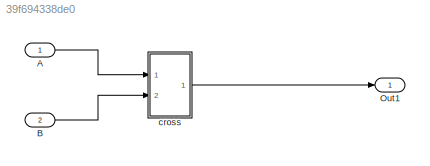
MODEL slx_39f694338de0
KIND model
CONFIG AbsTol = auto
CONFIG EnableMultiTasking = off
CONFIG FixedStep = 0.200000
CONFIG MaxStep = auto
CONFIG MinStep = auto
CONFIG RelTol = 1e-3
CONFIG SampleTimeConstraint = Unconstrained
CONFIG Solver = FixedStepDiscrete
CONFIG SolverName = FixedStepDiscrete
CONFIG StartTime = 0.0
CONFIG StopTime = 10.0
BLOCK [Inport] A
  IconDisplay = Port number
BLOCK [Inport] B
  IconDisplay = Port number
  Port = 2
BLOCK [Outport] Out1
  IconDisplay = Port number
  OutMax = 5
  OutMin = 1
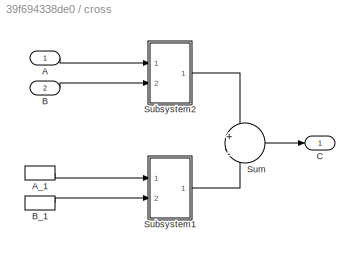
BLOCK [SubSystem] cross
  Ports = [2, 1]
  RequestExecContextInheritance = off
  Variant = off
BLOCK [Inport] cross/A
  IconDisplay = Port number
BLOCK [InportShadow] cross/A_1
  IconDisplay = Port number
BLOCK [Inport] cross/B
  IconDisplay = Port number
  Port = 2
BLOCK [InportShadow] cross/B_1
  IconDisplay = Port number
  Port = 2
BLOCK [Outport] cross/C
  IconDisplay = Port number
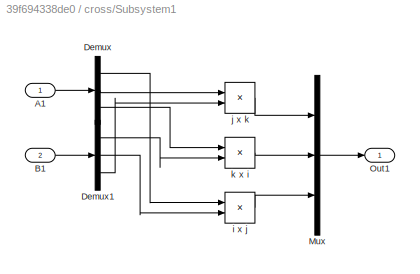
BLOCK [SubSystem] cross/Subsystem1
  Ports = [2, 1]
  RequestExecContextInheritance = off
  Variant = off
BLOCK [Inport] cross/Subsystem1/A1
  IconDisplay = Port number
BLOCK [Inport] cross/Subsystem1/B1
  IconDisplay = Port number
  Port = 2
BLOCK [Demux] cross/Subsystem1/Demux
  DisplayOption = bar
  Outputs = 3
  Ports = [1, 3]
BLOCK [Demux] cross/Subsystem1/Demux1
  DisplayOption = bar
  Outputs = 3
  Ports = [1, 3]
BLOCK [Mux] cross/Subsystem1/Mux
  DisplayOption = bar
  Inputs = 3
  Ports = [3, 1]
BLOCK [Outport] cross/Subsystem1/Out1
  IconDisplay = Port number
BLOCK [Product] cross/Subsystem1/i x j
  Ports = [2, 1]
  RndMeth = Floor
BLOCK [Product] cross/Subsystem1/j x k
  Ports = [2, 1]
  RndMeth = Floor
BLOCK [Product] cross/Subsystem1/k x i
  Ports = [2, 1]
  RndMeth = Floor
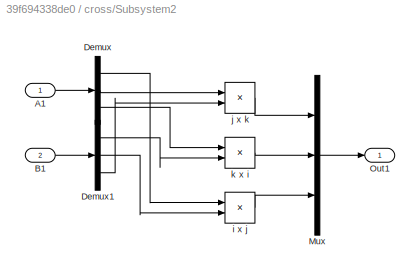
BLOCK [SubSystem] cross/Subsystem2
  Ports = [2, 1]
  RequestExecContextInheritance = off
  Variant = off
BLOCK [Inport] cross/Subsystem2/A1
  IconDisplay = Port number
BLOCK [Inport] cross/Subsystem2/B1
  IconDisplay = Port number
  Port = 2
BLOCK [Demux] cross/Subsystem2/Demux
  DisplayOption = bar
  Outputs = 3
  Ports = [1, 3]
BLOCK [Demux] cross/Subsystem2/Demux1
  DisplayOption = bar
  Outputs = 3
  Ports = [1, 3]
BLOCK [Mux] cross/Subsystem2/Mux
  DisplayOption = bar
  Inputs = 3
  Ports = [3, 1]
BLOCK [Outport] cross/Subsystem2/Out1
  IconDisplay = Port number
BLOCK [Product] cross/Subsystem2/i x j
  Ports = [2, 1]
  RndMeth = Floor
BLOCK [Product] cross/Subsystem2/j x k
  Ports = [2, 1]
  RndMeth = Floor
BLOCK [Product] cross/Subsystem2/k x i
  Ports = [2, 1]
  RndMeth = Floor
BLOCK [Sum] cross/Sum
  IconShape = round
  Inputs = +|-
  Ports = [2, 1]
LINE A:1 -> cross:1
LINE B:1 -> cross:2
LINE cross/A:1 -> cross/Subsystem2:1
LINE cross/A_1:1 -> cross/Subsystem1:1
LINE cross/B:1 -> cross/Subsystem2:2
LINE cross/B_1:1 -> cross/Subsystem1:2
LINE cross/Subsystem1/A1:1 -> cross/Subsystem1/Demux:1
LINE cross/Subsystem1/B1:1 -> cross/Subsystem1/Demux1:1
LINE cross/Subsystem1/Demux1:1 -> cross/Subsystem1/k x i:2
LINE cross/Subsystem1/Demux1:2 -> cross/Subsystem1/i x j:2
LINE cross/Subsystem1/Demux1:3 -> cross/Subsystem1/j x k:2
LINE cross/Subsystem1/Demux:1 -> cross/Subsystem1/i x j:1
LINE cross/Subsystem1/Demux:2 -> cross/Subsystem1/j x k:1
LINE cross/Subsystem1/Demux:3 -> cross/Subsystem1/k x i:1
LINE cross/Subsystem1/Mux:1 -> cross/Subsystem1/Out1:1
LINE cross/Subsystem1/i x j:1 -> cross/Subsystem1/Mux:3
LINE cross/Subsystem1/j x k:1 -> cross/Subsystem1/Mux:1
LINE cross/Subsystem1/k x i:1 -> cross/Subsystem1/Mux:2
LINE cross/Subsystem1:1 -> cross/Sum:2
LINE cross/Subsystem2/A1:1 -> cross/Subsystem2/Demux:1
LINE cross/Subsystem2/B1:1 -> cross/Subsystem2/Demux1:1
LINE cross/Subsystem2/Demux1:1 -> cross/Subsystem2/k x i:2
LINE cross/Subsystem2/Demux1:2 -> cross/Subsystem2/i x j:2
LINE cross/Subsystem2/Demux1:3 -> cross/Subsystem2/j x k:2
LINE cross/Subsystem2/Demux:1 -> cross/Subsystem2/i x j:1
LINE cross/Subsystem2/Demux:2 -> cross/Subsystem2/j x k:1
LINE cross/Subsystem2/Demux:3 -> cross/Subsystem2/k x i:1
LINE cross/Subsystem2/Mux:1 -> cross/Subsystem2/Out1:1
LINE cross/Subsystem2/i x j:1 -> cross/Subsystem2/Mux:3
LINE cross/Subsystem2/j x k:1 -> cross/Subsystem2/Mux:1
LINE cross/Subsystem2/k x i:1 -> cross/Subsystem2/Mux:2
LINE cross/Subsystem2:1 -> cross/Sum:1
LINE cross/Sum:1 -> cross/C:1
LINE cross:1 -> Out1:1
